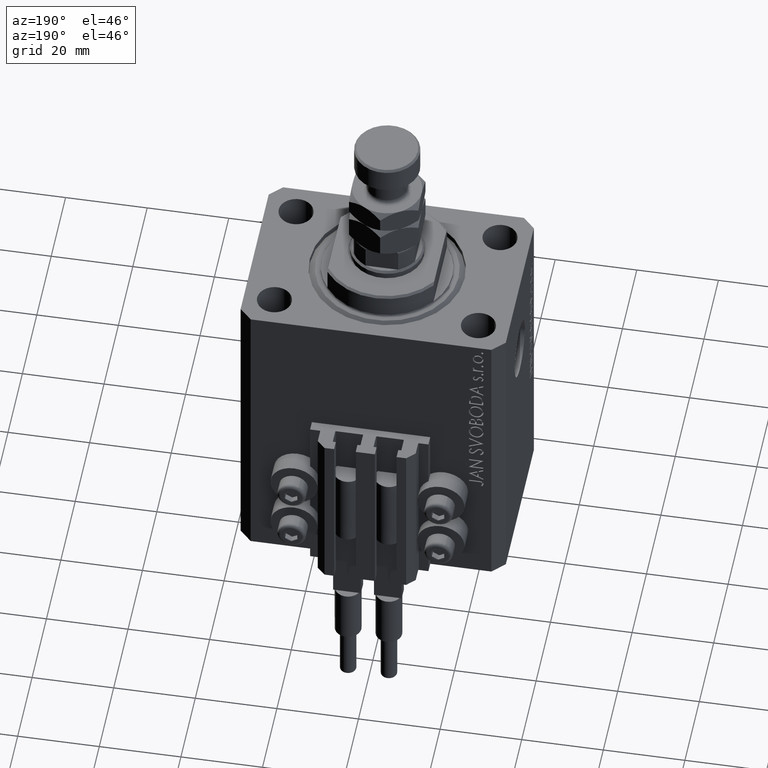
[diagram: clean part render]
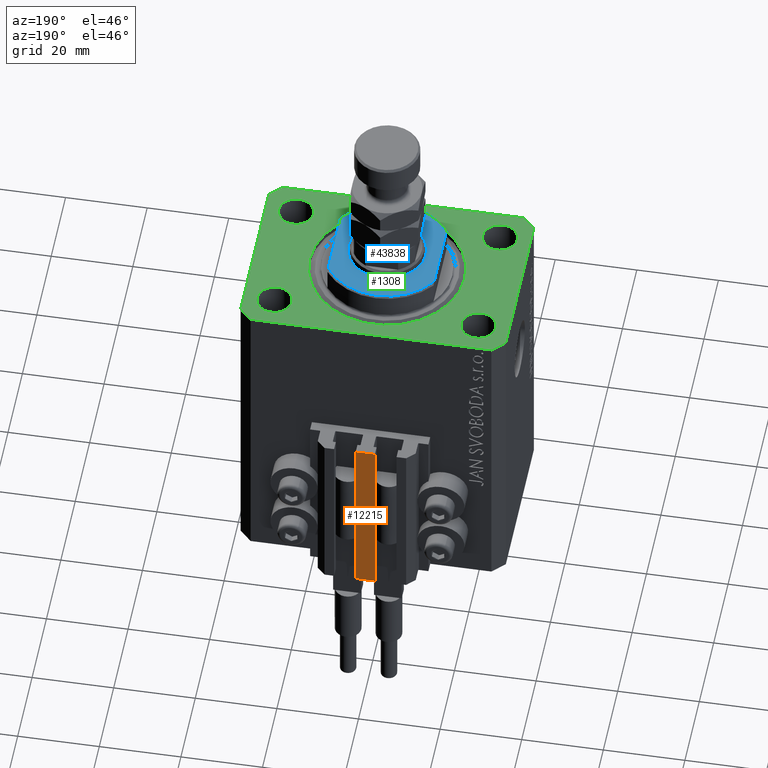
[diagram: same view with three faces highlighted in distinct colors, each labeled with its STEP entity id]
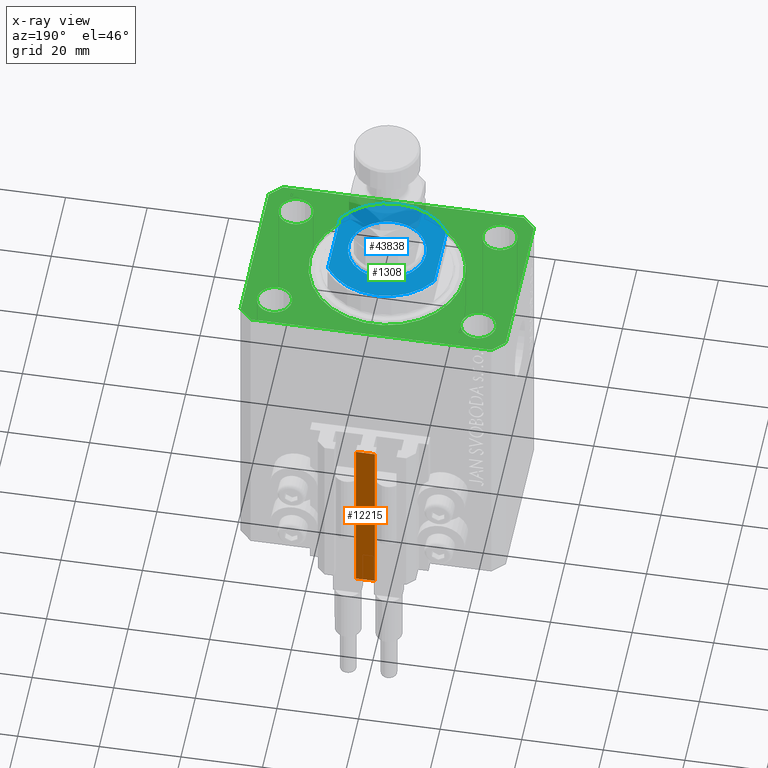
[diagram: x-ray of the same camera — body ghosted, the three highlighted faces saturated]
A machine part, auxiliary view with three faces highlighted in distinct colors.
The next image is the same camera in x-ray (body ghosted, the three faces saturated) — at least one of them is partly hidden behind the body in this view.
Their STEP definitions:

[orange] entity #12215 — the highlighted planar face has unit normal (0, -1, 0).
#3717 = EDGE_CURVE ( 'NONE', #25916, #19994, #23032, .T. ) ;
#6300 = FACE_OUTER_BOUND ( 'NONE', #9589, .T. ) ;
#8987 = ORIENTED_EDGE ( 'NONE', *, *, #16082, .F. ) ;
#9435 = DIRECTION ( 'NONE',  ( 0.000000000000000000, 0.000000000000000000, 1.000000000000000000 ) ) ;
#9589 = EDGE_LOOP ( 'NONE', ( #28662, #8987, #9967, #33511 ) ) ;
#9967 = ORIENTED_EDGE ( 'NONE', *, *, #3717, .F. ) ;
#10932 = CARTESIAN_POINT ( 'NONE',  ( -2.350000000000003197, 30.49999999999949907, -77.00000000000000000 ) ) ;
#12215 = ADVANCED_FACE ( 'NONE', ( #6300 ), #33544, .F. ) ;
#12913 = VECTOR ( 'NONE', #9435, 1000.000000000000000 ) ;
#14375 = CARTESIAN_POINT ( 'NONE',  ( -2.350000000000003197, 30.49999999999949907, -77.00000000000000000 ) ) ;
#14895 = EDGE_CURVE ( 'NONE', #41286, #36175, #43626, .T. ) ;
#16082 = EDGE_CURVE ( 'NONE', #19994, #36175, #33742, .T. ) ;
#19994 = VERTEX_POINT ( 'NONE', #43421 ) ;
#20793 = LINE ( 'NONE', #35938, #12913 ) ;
#22120 = CARTESIAN_POINT ( 'NONE',  ( -2.350000000000003197, 30.49999999999949907, -33.00000000000000000 ) ) ;
#23032 = LINE ( 'NONE', #41725, #33111 ) ;
#23063 = CARTESIAN_POINT ( 'NONE',  ( 2.349999999999999645, 30.49999999999949907, -33.00000000000000000 ) ) ;
#23624 = AXIS2_PLACEMENT_3D ( 'NONE', #14375, #30252, #37817 ) ;
#24897 = CARTESIAN_POINT ( 'NONE',  ( -2.350000000000003197, 30.49999999999949907, -33.00000000000000000 ) ) ;
#25916 = VERTEX_POINT ( 'NONE', #10932 ) ;
#26900 = VECTOR ( 'NONE', #40319, 1000.000000000000000 ) ;
#28662 = ORIENTED_EDGE ( 'NONE', *, *, #14895, .T. ) ;
#28912 = VECTOR ( 'NONE', #45366, 1000.000000000000000 ) ;
#30252 = DIRECTION ( 'NONE',  ( 0.000000000000000000, -1.000000000000000000, 0.000000000000000000 ) ) ;
#33111 = VECTOR ( 'NONE', #38173, 1000.000000000000000 ) ;
#33511 = ORIENTED_EDGE ( 'NONE', *, *, #37991, .T. ) ;
#33544 = PLANE ( 'NONE',  #23624 ) ;
#33742 = LINE ( 'NONE', #41823, #28912 ) ;
#35938 = CARTESIAN_POINT ( 'NONE',  ( -2.350000000000003197, 30.49999999999949907, -77.00000000000000000 ) ) ;
#36175 = VERTEX_POINT ( 'NONE', #23063 ) ;
#37817 = DIRECTION ( 'NONE',  ( 0.000000000000000000, -0.000000000000000000, -1.000000000000000000 ) ) ;
#37991 = EDGE_CURVE ( 'NONE', #25916, #41286, #20793, .T. ) ;
#38173 = DIRECTION ( 'NONE',  ( 1.000000000000000000, 0.000000000000000000, 0.000000000000000000 ) ) ;
#40319 = DIRECTION ( 'NONE',  ( 1.000000000000000000, 0.000000000000000000, 0.000000000000000000 ) ) ;
#41286 = VERTEX_POINT ( 'NONE', #22120 ) ;
#41725 = CARTESIAN_POINT ( 'NONE',  ( -2.350000000000003197, 30.49999999999949907, -77.00000000000000000 ) ) ;
#41823 = CARTESIAN_POINT ( 'NONE',  ( 2.349999999999999645, 30.49999999999949907, -77.00000000000000000 ) ) ;
#43421 = CARTESIAN_POINT ( 'NONE',  ( 2.349999999999999645, 30.49999999999949907, -77.00000000000000000 ) ) ;
#43626 = LINE ( 'NONE', #24897, #26900 ) ;
#45366 = DIRECTION ( 'NONE',  ( 0.000000000000000000, 0.000000000000000000, 1.000000000000000000 ) ) ;

[blue] entity #43838 — the highlighted planar face has unit normal (0, 0, 1).
#168 = PLANE ( 'NONE',  #43731 ) ;
#549 = EDGE_LOOP ( 'NONE', ( #2374, #24758, #48459, #26290 ) ) ;
#1114 = VECTOR ( 'NONE', #28512, 1000.000000000000000 ) ;
#2374 = ORIENTED_EDGE ( 'NONE', *, *, #31748, .T. ) ;
#3105 = DIRECTION ( 'NONE',  ( -1.000000000000000000, 0.000000000000000000, 0.000000000000000000 ) ) ;
#4309 = AXIS2_PLACEMENT_3D ( 'NONE', #40482, #29847, #3105 ) ;
#4653 = EDGE_CURVE ( 'NONE', #32172, #14262, #10613, .T. ) ;
#6151 = DIRECTION ( 'NONE',  ( -1.000000000000000000, 0.000000000000000000, 0.000000000000000000 ) ) ;
#10200 = CARTESIAN_POINT ( 'NONE',  ( 0.000000000000000000, 0.000000000000000000, -6.500000000000000000 ) ) ;
#10613 = CIRCLE ( 'NONE', #17860, 9.500000000000015987 ) ;
#11141 = CARTESIAN_POINT ( 'NONE',  ( 13.00000000000000000, -8.440971508067139695, -6.500000000000000000 ) ) ;
#12407 = CARTESIAN_POINT ( 'NONE',  ( -13.00000000000000000, 8.440971508067139695, -6.500000000000000000 ) ) ;
#13132 = CARTESIAN_POINT ( 'NONE',  ( 13.00000000000000000, -43.08131845707602992, -6.500000000000000000 ) ) ;
#13679 = LINE ( 'NONE', #32356, #39819 ) ;
#14204 = EDGE_CURVE ( 'NONE', #44549, #34929, #13679, .T. ) ;
#14262 = VERTEX_POINT ( 'NONE', #41936 ) ;
#14723 = EDGE_CURVE ( 'NONE', #47241, #47246, #47715, .T. ) ;
#14827 = EDGE_CURVE ( 'NONE', #14262, #32172, #22076, .T. ) ;
#16977 = CARTESIAN_POINT ( 'NONE',  ( -9.500000000000015987, 0.000000000000000000, -6.500000000000000000 ) ) ;
#17860 = AXIS2_PLACEMENT_3D ( 'NONE', #39805, #27938, #6151 ) ;
#19619 = CIRCLE ( 'NONE', #4309, 15.50000000000003730 ) ;
#19647 = CARTESIAN_POINT ( 'NONE',  ( 0.000000000000000000, 0.000000000000000000, -6.500000000000000000 ) ) ;
#22076 = CIRCLE ( 'NONE', #42233, 9.500000000000015987 ) ;
#22233 = AXIS2_PLACEMENT_3D ( 'NONE', #10200, #25577, #32901 ) ;
#23924 = DIRECTION ( 'NONE',  ( -1.000000000000000000, 0.000000000000000000, 0.000000000000000000 ) ) ;
#24758 = ORIENTED_EDGE ( 'NONE', *, *, #14723, .T. ) ;
#25577 = DIRECTION ( 'NONE',  ( 0.000000000000000000, 0.000000000000000000, -1.000000000000000000 ) ) ;
#26290 = ORIENTED_EDGE ( 'NONE', *, *, #14204, .F. ) ;
#26411 = CARTESIAN_POINT ( 'NONE',  ( 0.000000000000000000, 0.000000000000000000, -6.500000000000000000 ) ) ;
#27318 = CARTESIAN_POINT ( 'NONE',  ( -13.00000000000000000, -8.440971508067139695, -6.500000000000000000 ) ) ;
#27475 = EDGE_LOOP ( 'NONE', ( #28366, #43539 ) ) ;
#27938 = DIRECTION ( 'NONE',  ( -0.000000000000000000, -0.000000000000000000, 1.000000000000000000 ) ) ;
#28366 = ORIENTED_EDGE ( 'NONE', *, *, #4653, .T. ) ;
#28512 = DIRECTION ( 'NONE',  ( 0.000000000000000000, -1.000000000000000000, -0.000000000000000000 ) ) ;
#29847 = DIRECTION ( 'NONE',  ( 0.000000000000000000, 0.000000000000000000, -1.000000000000000000 ) ) ;
#30205 = DIRECTION ( 'NONE',  ( 0.000000000000000000, 0.000000000000000000, -1.000000000000000000 ) ) ;
#31253 = DIRECTION ( 'NONE',  ( -0.000000000000000000, -0.000000000000000000, 1.000000000000000000 ) ) ;
#31748 = EDGE_CURVE ( 'NONE', #44549, #47241, #35925, .T. ) ;
#32172 = VERTEX_POINT ( 'NONE', #16977 ) ;
#32356 = CARTESIAN_POINT ( 'NONE',  ( -13.00000000000000000, -43.08131845707602992, -6.500000000000000000 ) ) ;
#32901 = DIRECTION ( 'NONE',  ( -1.000000000000000000, 0.000000000000000000, 0.000000000000000000 ) ) ;
#33990 = DIRECTION ( 'NONE',  ( -1.000000000000000000, 0.000000000000000000, -0.000000000000000000 ) ) ;
#34181 = EDGE_CURVE ( 'NONE', #47246, #34929, #19619, .T. ) ;
#34744 = FACE_BOUND ( 'NONE', #27475, .T. ) ;
#34929 = VERTEX_POINT ( 'NONE', #27318 ) ;
#35925 = CIRCLE ( 'NONE', #22233, 15.50000000000003730 ) ;
#36144 = CARTESIAN_POINT ( 'NONE',  ( 13.00000000000000000, 8.440971508067139695, -6.500000000000000000 ) ) ;
#38531 = FACE_OUTER_BOUND ( 'NONE', #549, .T. ) ;
#39805 = CARTESIAN_POINT ( 'NONE',  ( 0.000000000000000000, 0.000000000000000000, -6.500000000000000000 ) ) ;
#39819 = VECTOR ( 'NONE', #40688, 1000.000000000000000 ) ;
#40482 = CARTESIAN_POINT ( 'NONE',  ( 0.000000000000000000, 0.000000000000000000, -6.500000000000000000 ) ) ;
#40688 = DIRECTION ( 'NONE',  ( -0.000000000000000000, -1.000000000000000000, -0.000000000000000000 ) ) ;
#41936 = CARTESIAN_POINT ( 'NONE',  ( 9.500000000000015987, 1.163414459189987457E-15, -6.500000000000000000 ) ) ;
#42233 = AXIS2_PLACEMENT_3D ( 'NONE', #19647, #31253, #23924 ) ;
#43539 = ORIENTED_EDGE ( 'NONE', *, *, #14827, .T. ) ;
#43731 = AXIS2_PLACEMENT_3D ( 'NONE', #26411, #30205, #33990 ) ;
#43838 = ADVANCED_FACE ( 'NONE', ( #34744, #38531 ), #168, .T. ) ;
#44549 = VERTEX_POINT ( 'NONE', #12407 ) ;
#47241 = VERTEX_POINT ( 'NONE', #36144 ) ;
#47246 = VERTEX_POINT ( 'NONE', #11141 ) ;
#47715 = LINE ( 'NONE', #13132, #1114 ) ;
#48459 = ORIENTED_EDGE ( 'NONE', *, *, #34181, .T. ) ;

[green] entity #1308 — the highlighted planar face has unit normal (0, 0, 1).
#556 = AXIS2_PLACEMENT_3D ( 'NONE', #43288, #8708, #24075 ) ;
#1256 = CIRCLE ( 'NONE', #26219, 4.250000000021375790 ) ;
#1308 = ADVANCED_FACE ( 'NONE', ( #29244, #17914, #15309, #30433, #22607, #44668 ), #38002, .T. ) ;
#2119 = CARTESIAN_POINT ( 'NONE',  ( -29.49999999999650413, 22.49999999999949907, 0.000000000000000000 ) ) ;
#3019 = CARTESIAN_POINT ( 'NONE',  ( -24.99999999999999289, -15.00000000000000355, 0.000000000000000000 ) ) ;
#3062 = DIRECTION ( 'NONE',  ( 0.000000000000000000, 0.000000000000000000, 1.000000000000000000 ) ) ;
#3367 = DIRECTION ( 'NONE',  ( -0.7071067811865344721, 0.7071067811865606734, 0.000000000000000000 ) ) ;
#3616 = DIRECTION ( 'NONE',  ( 0.000000000000000000, 0.000000000000000000, 1.000000000000000000 ) ) ;
#3623 = CARTESIAN_POINT ( 'NONE',  ( 32.49999999999651124, -19.49999999999949196, 0.000000000000000000 ) ) ;
#3630 = LINE ( 'NONE', #15495, #37971 ) ;
#3730 = ORIENTED_EDGE ( 'NONE', *, *, #40550, .T. ) ;
#4097 = CIRCLE ( 'NONE', #32284, 4.249999999957291053 ) ;
#5103 = CIRCLE ( 'NONE', #22024, 4.249999999976314058 ) ;
#5365 = EDGE_CURVE ( 'NONE', #29197, #27642, #23909, .T. ) ;
#5493 = EDGE_CURVE ( 'NONE', #12713, #40911, #13813, .T. ) ;
#6040 = CARTESIAN_POINT ( 'NONE',  ( 29.49999999999650413, -22.49999999999949196, 0.000000000000000000 ) ) ;
#6396 = DIRECTION ( 'NONE',  ( 1.000000000000000000, 0.000000000000000000, 0.000000000000000000 ) ) ;
#6407 = DIRECTION ( 'NONE',  ( -0.7071067811865474617, -0.7071067811865474617, 0.000000000000000000 ) ) ;
#6462 = EDGE_CURVE ( 'NONE', #47609, #8366, #41981, .T. ) ;
#6538 = CARTESIAN_POINT ( 'NONE',  ( -29.25000000002137668, 14.99999999999999645, 0.000000000000000000 ) ) ;
#6539 = DIRECTION ( 'NONE',  ( 0.7071067811865483499, 0.7071067811865466846, 0.000000000000000000 ) ) ;
#7078 = VERTEX_POINT ( 'NONE', #26951 ) ;
#7399 = CARTESIAN_POINT ( 'NONE',  ( 0.000000000000000000, 0.000000000000000000, 0.000000000000000000 ) ) ;
#7515 = CARTESIAN_POINT ( 'NONE',  ( -29.49999999999650413, -22.49999999999949907, 0.000000000000000000 ) ) ;
#7918 = DIRECTION ( 'NONE',  ( 1.000000000000000000, 0.000000000000000000, 0.000000000000000000 ) ) ;
#7973 = CARTESIAN_POINT ( 'NONE',  ( -32.49999999999650413, -19.49999999999949907, 0.000000000000000000 ) ) ;
#8185 = VERTEX_POINT ( 'NONE', #23609 ) ;
#8366 = VERTEX_POINT ( 'NONE', #28641 ) ;
#8480 = VECTOR ( 'NONE', #6539, 1000.000000000000000 ) ;
#8528 = DIRECTION ( 'NONE',  ( 1.000000000000000000, 0.000000000000000000, 0.000000000000000000 ) ) ;
#8708 = DIRECTION ( 'NONE',  ( 0.000000000000000000, 0.000000000000000000, 1.000000000000000000 ) ) ;
#8872 = DIRECTION ( 'NONE',  ( 0.000000000000000000, 0.000000000000000000, 1.000000000000000000 ) ) ;
#11255 = DIRECTION ( 'NONE',  ( 0.000000000000000000, 0.000000000000000000, 1.000000000000000000 ) ) ;
#11365 = EDGE_CURVE ( 'NONE', #21957, #47609, #44666, .T. ) ;
#11976 = EDGE_CURVE ( 'NONE', #26420, #47729, #20511, .T. ) ;
#12040 = ORIENTED_EDGE ( 'NONE', *, *, #11365, .T. ) ;
#12194 = CIRCLE ( 'NONE', #12985, 4.250000000040370374 ) ;
#12413 = ORIENTED_EDGE ( 'NONE', *, *, #27391, .F. ) ;
#12713 = VERTEX_POINT ( 'NONE', #38512 ) ;
#12985 = AXIS2_PLACEMENT_3D ( 'NONE', #3019, #18427, #19174 ) ;
#13344 = EDGE_LOOP ( 'NONE', ( #47874, #24441 ) ) ;
#13813 = CIRCLE ( 'NONE', #20269, 4.249999999957291053 ) ;
#13940 = VERTEX_POINT ( 'NONE', #23232 ) ;
#14570 = CIRCLE ( 'NONE', #43587, 19.00000000000000000 ) ;
#15309 = FACE_BOUND ( 'NONE', #18397, .T. ) ;
#15338 = VECTOR ( 'NONE', #42092, 1000.000000000000000 ) ;
#15495 = CARTESIAN_POINT ( 'NONE',  ( 32.49999999999702993, 19.49999999999945999, 0.000000000000000000 ) ) ;
#16351 = CARTESIAN_POINT ( 'NONE',  ( 29.49999999999707967, 22.49999999999952038, 0.000000000000000000 ) ) ;
#16643 = ORIENTED_EDGE ( 'NONE', *, *, #38698, .F. ) ;
#17039 = LINE ( 'NONE', #2119, #27489 ) ;
#17756 = DIRECTION ( 'NONE',  ( 0.000000000000000000, -1.000000000000000000, 0.000000000000000000 ) ) ;
#17897 = VECTOR ( 'NONE', #19023, 1000.000000000000000 ) ;
#17914 = FACE_BOUND ( 'NONE', #29145, .T. ) ;
#18397 = EDGE_LOOP ( 'NONE', ( #22711, #29386 ) ) ;
#18427 = DIRECTION ( 'NONE',  ( 0.000000000000000000, 0.000000000000000000, 1.000000000000000000 ) ) ;
#19023 = DIRECTION ( 'NONE',  ( 1.334402673828349134E-14, 1.000000000000000000, 0.000000000000000000 ) ) ;
#19037 = VERTEX_POINT ( 'NONE', #41661 ) ;
#19160 = CARTESIAN_POINT ( 'NONE',  ( 19.00000000000000000, 0.000000000000000000, 0.000000000000000000 ) ) ;
#19174 = DIRECTION ( 'NONE',  ( 1.000000000000000000, 0.000000000000000000, 0.000000000000000000 ) ) ;
#19367 = VECTOR ( 'NONE', #17756, 1000.000000000000000 ) ;
#20123 = CARTESIAN_POINT ( 'NONE',  ( -24.99999999999999289, -15.00000000000000355, 0.000000000000000000 ) ) ;
#20269 = AXIS2_PLACEMENT_3D ( 'NONE', #47632, #28435, #44337 ) ;
#20394 = VERTEX_POINT ( 'NONE', #38447 ) ;
#20511 = CIRCLE ( 'NONE', #47936, 19.00000000000000000 ) ;
#21084 = ORIENTED_EDGE ( 'NONE', *, *, #27134, .T. ) ;
#21703 = CIRCLE ( 'NONE', #39482, 4.250000000040370374 ) ;
#21957 = VERTEX_POINT ( 'NONE', #29757 ) ;
#22024 = AXIS2_PLACEMENT_3D ( 'NONE', #49051, #36927, #6396 ) ;
#22335 = ORIENTED_EDGE ( 'NONE', *, *, #39119, .F. ) ;
#22385 = EDGE_LOOP ( 'NONE', ( #16643, #34679 ) ) ;
#22607 = FACE_BOUND ( 'NONE', #13344, .T. ) ;
#22672 = VECTOR ( 'NONE', #47392, 1000.000000000000000 ) ;
#22711 = ORIENTED_EDGE ( 'NONE', *, *, #34196, .F. ) ;
#22734 = CIRCLE ( 'NONE', #45341, 4.250000000021375790 ) ;
#22968 = ORIENTED_EDGE ( 'NONE', *, *, #38384, .T. ) ;
#23232 = CARTESIAN_POINT ( 'NONE',  ( -32.49999999999650413, 19.49999999999949907, 0.000000000000000000 ) ) ;
#23511 = CARTESIAN_POINT ( 'NONE',  ( 20.75000000002367884, -15.00000000000000355, 0.000000000000000000 ) ) ;
#23537 = EDGE_CURVE ( 'NONE', #44441, #20394, #43308, .T. ) ;
#23609 = CARTESIAN_POINT ( 'NONE',  ( -20.74999999997862687, 14.99999999999999645, 0.000000000000000000 ) ) ;
#23623 = EDGE_LOOP ( 'NONE', ( #22335, #48220 ) ) ;
#23647 = DIRECTION ( 'NONE',  ( 0.000000000000000000, 0.000000000000000000, 1.000000000000000000 ) ) ;
#23909 = LINE ( 'NONE', #16351, #22672 ) ;
#24075 = DIRECTION ( 'NONE',  ( 1.000000000000000000, 0.000000000000000000, 0.000000000000000000 ) ) ;
#24441 = ORIENTED_EDGE ( 'NONE', *, *, #30592, .F. ) ;
#24644 = DIRECTION ( 'NONE',  ( 0.000000000000000000, 0.000000000000000000, 1.000000000000000000 ) ) ;
#24704 = DIRECTION ( 'NONE',  ( 0.7071067811865474617, -0.7071067811865474617, 0.000000000000000000 ) ) ;
#25621 = ORIENTED_EDGE ( 'NONE', *, *, #36521, .F. ) ;
#25762 = DIRECTION ( 'NONE',  ( 1.000000000000000000, 0.000000000000000000, 0.000000000000000000 ) ) ;
#26219 = AXIS2_PLACEMENT_3D ( 'NONE', #38450, #31617, #7918 ) ;
#26420 = VERTEX_POINT ( 'NONE', #40602 ) ;
#26951 = CARTESIAN_POINT ( 'NONE',  ( -29.49999999999650413, -22.49999999999949907, 0.000000000000000000 ) ) ;
#27134 = EDGE_CURVE ( 'NONE', #30273, #7078, #47443, .T. ) ;
#27391 = EDGE_CURVE ( 'NONE', #19037, #38262, #21703, .T. ) ;
#27489 = VECTOR ( 'NONE', #6407, 1000.000000000000114 ) ;
#27642 = VERTEX_POINT ( 'NONE', #35707 ) ;
#28107 = CARTESIAN_POINT ( 'NONE',  ( -32.49999999999650413, 19.49999999999949907, 0.000000000000000000 ) ) ;
#28430 = CARTESIAN_POINT ( 'NONE',  ( 29.49999999999707967, 22.49999999999952038, 0.000000000000000000 ) ) ;
#28435 = DIRECTION ( 'NONE',  ( 0.000000000000000000, 0.000000000000000000, 1.000000000000000000 ) ) ;
#28641 = CARTESIAN_POINT ( 'NONE',  ( 32.49999999999702993, 19.49999999999945999, 0.000000000000000000 ) ) ;
#29145 = EDGE_LOOP ( 'NONE', ( #12413, #25621 ) ) ;
#29197 = VERTEX_POINT ( 'NONE', #28430 ) ;
#29244 = FACE_BOUND ( 'NONE', #22385, .T. ) ;
#29386 = ORIENTED_EDGE ( 'NONE', *, *, #23537, .F. ) ;
#29757 = CARTESIAN_POINT ( 'NONE',  ( 29.49999999999650413, -22.49999999999949196, 0.000000000000000000 ) ) ;
#30273 = VERTEX_POINT ( 'NONE', #7973 ) ;
#30433 = FACE_BOUND ( 'NONE', #23623, .T. ) ;
#30592 = EDGE_CURVE ( 'NONE', #40389, #8185, #1256, .T. ) ;
#30685 = CARTESIAN_POINT ( 'NONE',  ( 0.000000000000000000, 0.000000000000000000, 0.000000000000000000 ) ) ;
#31581 = ORIENTED_EDGE ( 'NONE', *, *, #5365, .T. ) ;
#31617 = DIRECTION ( 'NONE',  ( 0.000000000000000000, 0.000000000000000000, 1.000000000000000000 ) ) ;
#32284 = AXIS2_PLACEMENT_3D ( 'NONE', #39560, #23647, #47386 ) ;
#32927 = ORIENTED_EDGE ( 'NONE', *, *, #40664, .T. ) ;
#33790 = CARTESIAN_POINT ( 'NONE',  ( 32.49999999999651124, -19.49999999999949196, 0.000000000000000000 ) ) ;
#34196 = EDGE_CURVE ( 'NONE', #20394, #44441, #5103, .T. ) ;
#34679 = ORIENTED_EDGE ( 'NONE', *, *, #11976, .F. ) ;
#35707 = CARTESIAN_POINT ( 'NONE',  ( -29.49999999999650413, 22.49999999999949907, 0.000000000000000000 ) ) ;
#36070 = CARTESIAN_POINT ( 'NONE',  ( -32.49999999999650413, -19.49999999999949907, 0.000000000000000000 ) ) ;
#36107 = CARTESIAN_POINT ( 'NONE',  ( -25.00000000000000000, 14.99999999999999645, 0.000000000000000000 ) ) ;
#36521 = EDGE_CURVE ( 'NONE', #38262, #19037, #12194, .T. ) ;
#36799 = CARTESIAN_POINT ( 'NONE',  ( -29.25000000004036593, -15.00000000000000355, 0.000000000000000000 ) ) ;
#36927 = DIRECTION ( 'NONE',  ( 0.000000000000000000, 0.000000000000000000, 1.000000000000000000 ) ) ;
#37790 = LINE ( 'NONE', #7515, #15338 ) ;
#37971 = VECTOR ( 'NONE', #3367, 1000.000000000000000 ) ;
#37998 = EDGE_CURVE ( 'NONE', #13940, #30273, #47316, .T. ) ;
#38002 = PLANE ( 'NONE',  #48687 ) ;
#38262 = VERTEX_POINT ( 'NONE', #36799 ) ;
#38384 = EDGE_CURVE ( 'NONE', #7078, #21957, #37790, .T. ) ;
#38447 = CARTESIAN_POINT ( 'NONE',  ( 29.24999999997631051, -15.00000000000000355, 0.000000000000000000 ) ) ;
#38450 = CARTESIAN_POINT ( 'NONE',  ( -25.00000000000000000, 14.99999999999999645, 0.000000000000000000 ) ) ;
#38512 = CARTESIAN_POINT ( 'NONE',  ( 20.75000000004271072, 14.99999999999999289, 0.000000000000000000 ) ) ;
#38698 = EDGE_CURVE ( 'NONE', #47729, #26420, #14570, .T. ) ;
#39119 = EDGE_CURVE ( 'NONE', #40911, #12713, #4097, .T. ) ;
#39482 = AXIS2_PLACEMENT_3D ( 'NONE', #20123, #24644, #8528 ) ;
#39560 = CARTESIAN_POINT ( 'NONE',  ( 25.00000000000000000, 14.99999999999999289, 0.000000000000000000 ) ) ;
#39641 = CARTESIAN_POINT ( 'NONE',  ( 29.24999999995729283, 14.99999999999999289, 0.000000000000000000 ) ) ;
#40389 = VERTEX_POINT ( 'NONE', #6538 ) ;
#40550 = EDGE_CURVE ( 'NONE', #27642, #13940, #17039, .T. ) ;
#40602 = CARTESIAN_POINT ( 'NONE',  ( -19.00000000000000000, 2.326828918379970970E-15, 0.000000000000000000 ) ) ;
#40643 = EDGE_LOOP ( 'NONE', ( #31581, #3730, #44291, #21084, #22968, #12040, #48368, #32927 ) ) ;
#40664 = EDGE_CURVE ( 'NONE', #8366, #29197, #3630, .T. ) ;
#40878 = DIRECTION ( 'NONE',  ( 1.000000000000000000, 0.000000000000000000, -0.000000000000000000 ) ) ;
#40911 = VERTEX_POINT ( 'NONE', #39641 ) ;
#40932 = CARTESIAN_POINT ( 'NONE',  ( 0.000000000000000000, 0.000000000000000000, 0.000000000000000000 ) ) ;
#41661 = CARTESIAN_POINT ( 'NONE',  ( -20.74999999995962341, -15.00000000000000355, 0.000000000000000000 ) ) ;
#41981 = LINE ( 'NONE', #3623, #17897 ) ;
#42092 = DIRECTION ( 'NONE',  ( 1.000000000000000000, 1.176083712526788232E-16, 0.000000000000000000 ) ) ;
#42526 = DIRECTION ( 'NONE',  ( 1.000000000000000000, 0.000000000000000000, 0.000000000000000000 ) ) ;
#43288 = CARTESIAN_POINT ( 'NONE',  ( 24.99999999999999289, -15.00000000000000355, 0.000000000000000000 ) ) ;
#43308 = CIRCLE ( 'NONE', #556, 4.249999999976314058 ) ;
#43362 = EDGE_CURVE ( 'NONE', #8185, #40389, #22734, .T. ) ;
#43587 = AXIS2_PLACEMENT_3D ( 'NONE', #7399, #3616, #49047 ) ;
#44291 = ORIENTED_EDGE ( 'NONE', *, *, #37998, .T. ) ;
#44302 = VECTOR ( 'NONE', #24704, 1000.000000000000114 ) ;
#44337 = DIRECTION ( 'NONE',  ( 1.000000000000000000, 0.000000000000000000, 0.000000000000000000 ) ) ;
#44441 = VERTEX_POINT ( 'NONE', #23511 ) ;
#44666 = LINE ( 'NONE', #6040, #8480 ) ;
#44668 = FACE_OUTER_BOUND ( 'NONE', #40643, .T. ) ;
#45341 = AXIS2_PLACEMENT_3D ( 'NONE', #36107, #8872, #42526 ) ;
#47316 = LINE ( 'NONE', #28107, #19367 ) ;
#47386 = DIRECTION ( 'NONE',  ( 1.000000000000000000, 0.000000000000000000, 0.000000000000000000 ) ) ;
#47392 = DIRECTION ( 'NONE',  ( -1.000000000000000000, -3.528251137580330676E-16, 0.000000000000000000 ) ) ;
#47443 = LINE ( 'NONE', #36070, #44302 ) ;
#47609 = VERTEX_POINT ( 'NONE', #33790 ) ;
#47632 = CARTESIAN_POINT ( 'NONE',  ( 25.00000000000000000, 14.99999999999999289, 0.000000000000000000 ) ) ;
#47729 = VERTEX_POINT ( 'NONE', #19160 ) ;
#47874 = ORIENTED_EDGE ( 'NONE', *, *, #43362, .F. ) ;
#47936 = AXIS2_PLACEMENT_3D ( 'NONE', #40932, #3062, #25762 ) ;
#48220 = ORIENTED_EDGE ( 'NONE', *, *, #5493, .F. ) ;
#48368 = ORIENTED_EDGE ( 'NONE', *, *, #6462, .T. ) ;
#48687 = AXIS2_PLACEMENT_3D ( 'NONE', #30685, #11255, #40878 ) ;
#49047 = DIRECTION ( 'NONE',  ( 1.000000000000000000, 0.000000000000000000, 0.000000000000000000 ) ) ;
#49051 = CARTESIAN_POINT ( 'NONE',  ( 24.99999999999999289, -15.00000000000000355, 0.000000000000000000 ) ) ;